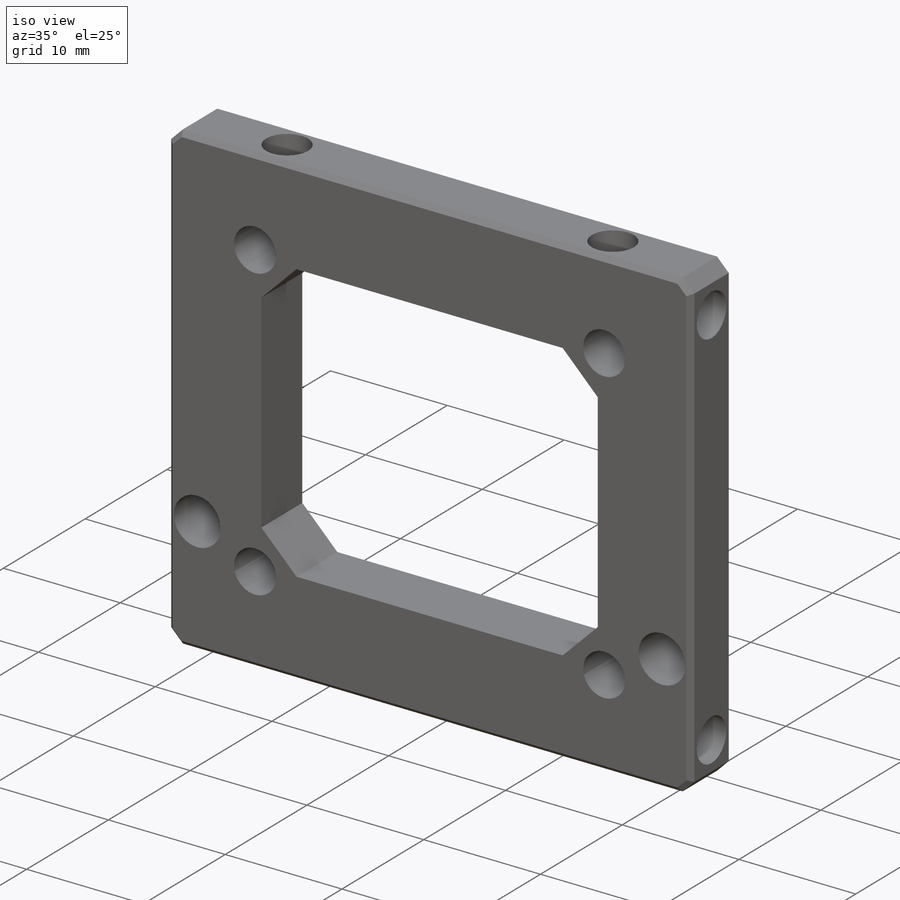
[diagram: iso view]
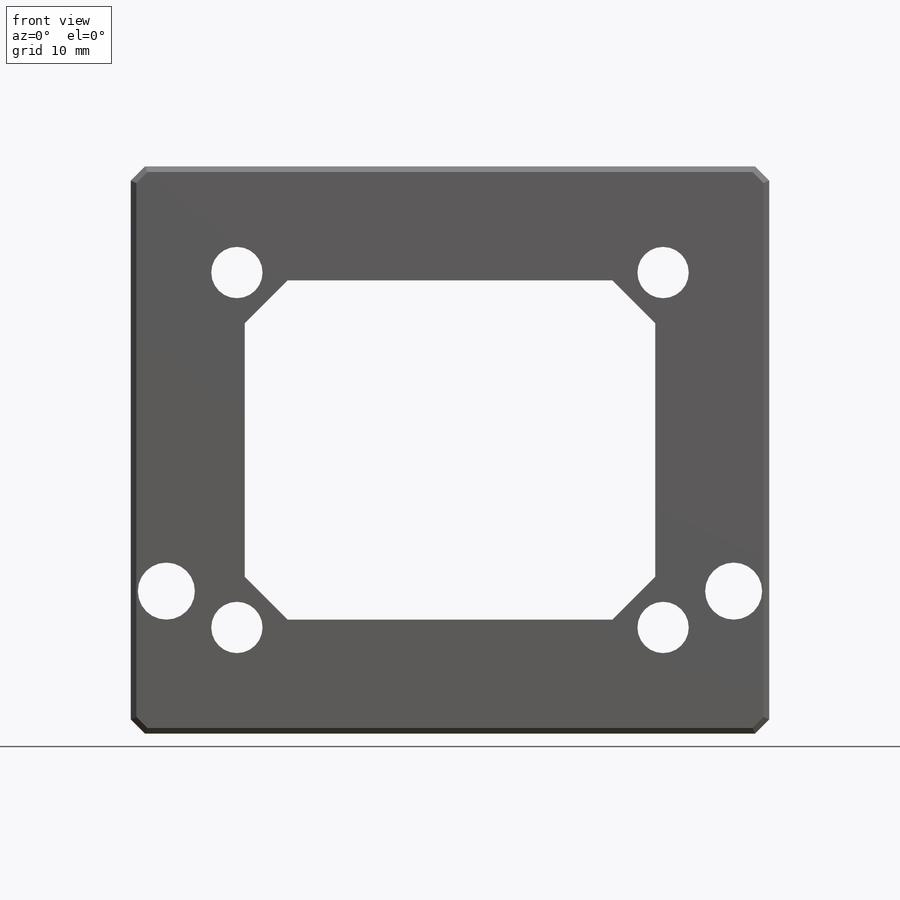
[diagram: front view]
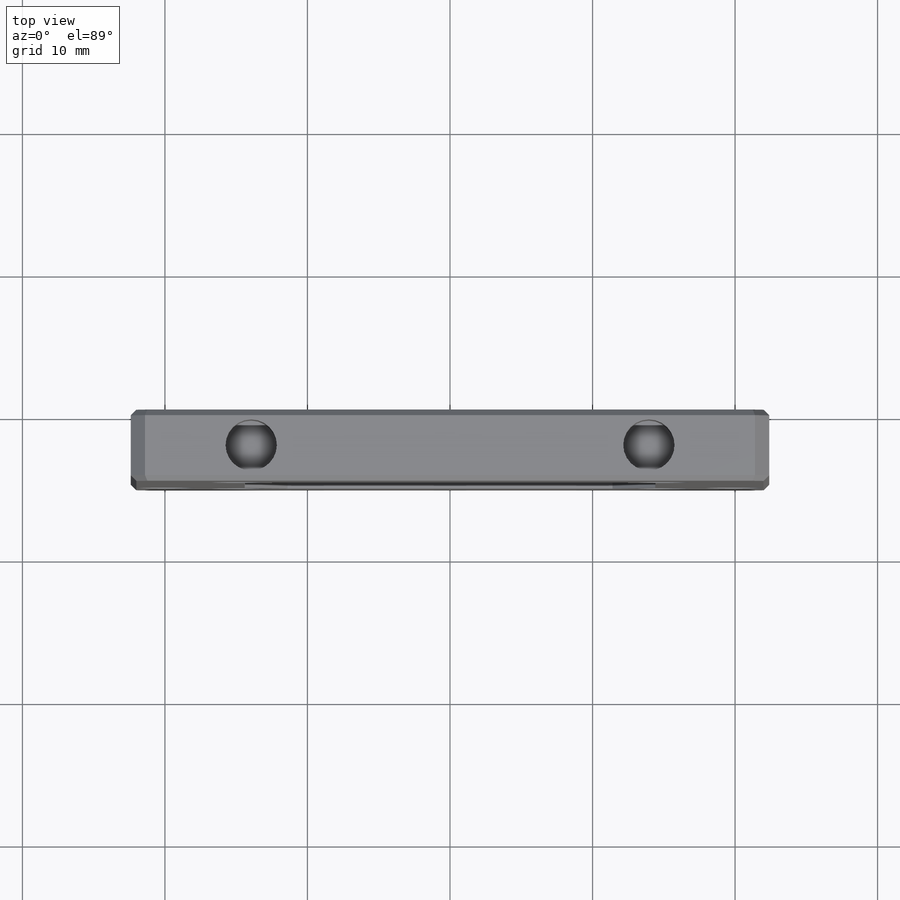
[diagram: top view]
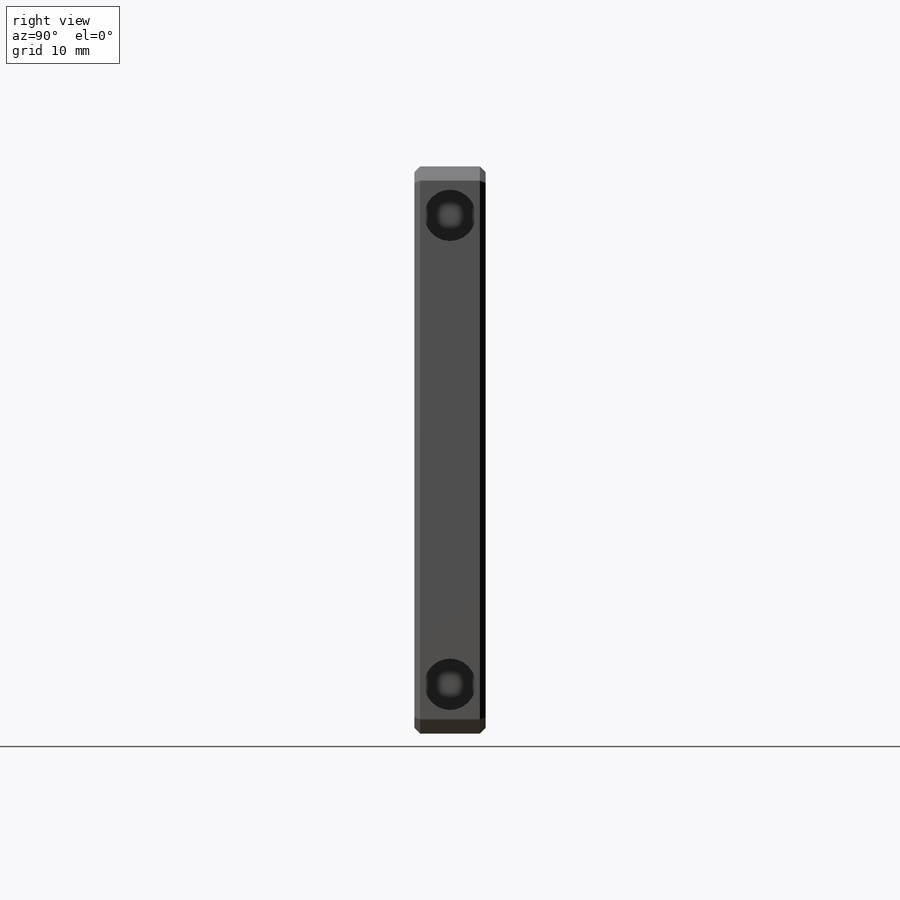
[diagram: right view]
SOLIDWORKS PART (.sldprt)
format: sldprt  version: not decoded by parser v0  size: 279,040 bytes
history: native  units: mm
features: sketch x5, cut_extrude x4, chamfer x3, mirror x2, material x1, extrude x1 (+13 scaffold rows collapsed)
feature tree (29):
  scaffold x13  (default folders/planes/origin — collapsed)
  material  "Material <not specified>"
  sketch  "Sketch2"  dims[D1=44.8mm D2=39.8mm D3=8.0mm D4=8.0mm]
  extrude  "Boss-Extrude1"  Depth=5mm
  chamfer  "Chamfer1"  Distance=1mm Angle=45deg
  chamfer  "Chamfer2"  Distance=3mm Angle=45deg
  sketch  "Sketch3"  dims[D1=3.6mm D2=7.45mm D3=7.45mm]
  cut_extrude  "Cut-Extrude1"  [1 undecoded]
  sketch  "Sketch4"  dims[c1.D1=3.6mm c1.D2=3.2mm c1.D3=3.2mm c2.D2=2.5mm c2.D3=8.45mm]
  cut_extrude  "Cut-Extrude2"  Depth=5mm
  sketch  "Sketch5"  dims[c1.D2=3.6mm c1.D3=3.2mm c1.D1=2.5mm c2.D3=3.45mm]
  cut_extrude  "Cut-Extrude3"  Depth=5mm
  mirror  "Mirror1"
  mirror  "Mirror2"
  sketch  "Sketch6"  dims[c1.D1=4.0mm c1.D2=4.0mm c1.D4=4.0mm c1.D3=2.5mm c2.D4=2.5mm c2.D5=10.0mm]
  cut_extrude  "Cut-Extrude4"  [1 undecoded]
  chamfer  "Chamfer3"  Distance=0.4mm Angle=45deg
decode coverage: 11 of 15 modeling features carry decoded parameters
note: 2 parameter values undecoded
note: suppression state not decoded; provenance and decode notes live in map.json
